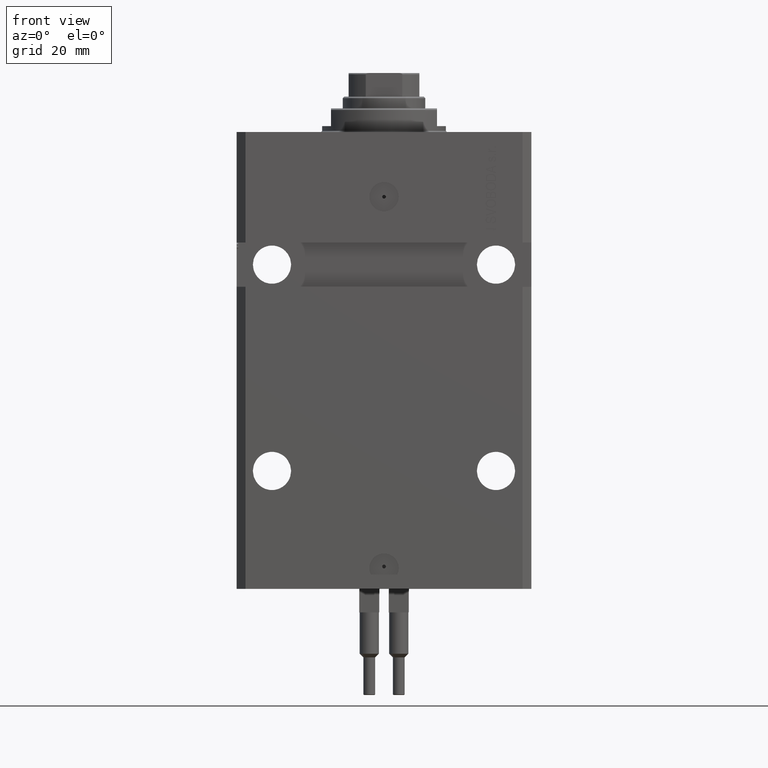
[diagram: clean part render]
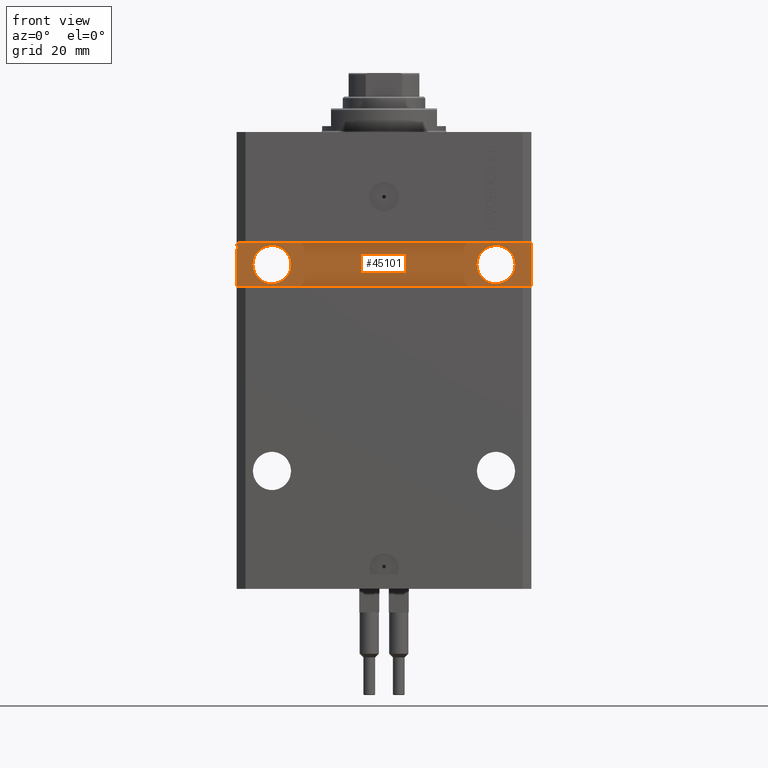
[diagram: same view with one face highlighted and labeled with its STEP entity id]
A machine part, front view. The second image highlights one B-rep face of the part: STEP entity #45101.
In plain terms, the highlighted planar face has unit normal (0, -1, 0).
Its self-contained STEP definition (entity closure, byte-faithful):
#3 = LINE ( 'NONE', #45347, #13160 ) ;
#674 = VERTEX_POINT ( 'NONE', #9948 ) ;
#1188 = VERTEX_POINT ( 'NONE', #18236 ) ;
#2284 = DIRECTION ( 'NONE',  ( 0.000000000000000000, 0.000000000000000000, -1.000000000000000000 ) ) ;
#2603 = CARTESIAN_POINT ( 'NONE',  ( -49.50000000000001421, -32.50000000000001421, -38.87066340383893959 ) ) ;
#2844 = DIRECTION ( 'NONE',  ( -1.000000000000000000, -0.000000000000000000, -0.000000000000000000 ) ) ;
#3007 = LINE ( 'NONE', #10695, #33400 ) ;
#3104 = EDGE_CURVE ( 'NONE', #35560, #1188, #3007, .T. ) ;
#3439 = EDGE_CURVE ( 'NONE', #29889, #26270, #47565, .T. ) ;
#4213 = CARTESIAN_POINT ( 'NONE',  ( -50.00000000000002842, -32.50000000000000711, -52.50000000000000000 ) ) ;
#4344 = ORIENTED_EDGE ( 'NONE', *, *, #31296, .T. ) ;
#4357 = ORIENTED_EDGE ( 'NONE', *, *, #29746, .F. ) ;
#5022 = ORIENTED_EDGE ( 'NONE', *, *, #6574, .F. ) ;
#6163 = VECTOR ( 'NONE', #47990, 1000.000000000000000 ) ;
#6218 = ORIENTED_EDGE ( 'NONE', *, *, #36492, .F. ) ;
#6323 = ORIENTED_EDGE ( 'NONE', *, *, #31222, .F. ) ;
#6550 = LINE ( 'NONE', #17206, #34693 ) ;
#6574 = EDGE_CURVE ( 'NONE', #14840, #35560, #47082, .T. ) ;
#7052 = ORIENTED_EDGE ( 'NONE', *, *, #3104, .F. ) ;
#7206 = DIRECTION ( 'NONE',  ( 1.101411730780568590E-16, -1.000000000000000000, 0.000000000000000000 ) ) ;
#8101 = CARTESIAN_POINT ( 'NONE',  ( 49.99999999999999289, -32.49999999999999289, -37.49999999999999289 ) ) ;
#8317 = CARTESIAN_POINT ( 'NONE',  ( -50.00000000000002842, -32.50000000000000711, -38.87066340383893959 ) ) ;
#8783 = FACE_BOUND ( 'NONE', #10429, .T. ) ;
#9240 = VERTEX_POINT ( 'NONE', #38800 ) ;
#9948 = CARTESIAN_POINT ( 'NONE',  ( -49.50000000000000711, -32.50000000000000711, -37.62144886363635976 ) ) ;
#10403 = ORIENTED_EDGE ( 'NONE', *, *, #12218, .T. ) ;
#10429 = EDGE_LOOP ( 'NONE', ( #6323, #31263 ) ) ;
#10695 = CARTESIAN_POINT ( 'NONE',  ( -49.50000000000016342, -32.50000000000000711, -39.86910993535713743 ) ) ;
#10739 = DIRECTION ( 'NONE',  ( 1.000000000000000000, 0.000000000000000000, 0.000000000000000000 ) ) ;
#11018 = ORIENTED_EDGE ( 'NONE', *, *, #27185, .F. ) ;
#11169 = CARTESIAN_POINT ( 'NONE',  ( -37.99999999999998579, -32.50000000000000711, -45.00000000000000711 ) ) ;
#11182 = DIRECTION ( 'NONE',  ( 3.791485858024926499E-13, 5.261743621399924533E-29, 1.000000000000000000 ) ) ;
#11225 = CARTESIAN_POINT ( 'NONE',  ( -31.49999999999998579, -32.50000000000000711, -45.00000000000000711 ) ) ;
#11402 = DIRECTION ( 'NONE',  ( -1.000000000000000000, -1.387778780781445182E-16, -1.387778780781445182E-16 ) ) ;
#11642 = CIRCLE ( 'NONE', #29843, 6.499999999999999112 ) ;
#11648 = LINE ( 'NONE', #4213, #26661 ) ;
#11817 = CARTESIAN_POINT ( 'NONE',  ( -50.00000000000002842, -32.50000000000000711, -37.50000000000000711 ) ) ;
#12216 = DIRECTION ( 'NONE',  ( 1.000000000000000000, 0.000000000000000000, 0.000000000000000000 ) ) ;
#12218 = EDGE_CURVE ( 'NONE', #30022, #29518, #44547, .T. ) ;
#13160 = VECTOR ( 'NONE', #11402, 1000.000000000000000 ) ;
#13814 = EDGE_CURVE ( 'NONE', #29518, #9240, #3, .T. ) ;
#14701 = CARTESIAN_POINT ( 'NONE',  ( 38.00000000000001421, -32.50000000000000000, -45.00000000000000000 ) ) ;
#14840 = VERTEX_POINT ( 'NONE', #20233 ) ;
#15297 = VECTOR ( 'NONE', #36654, 1000.000000000000000 ) ;
#15748 = VERTEX_POINT ( 'NONE', #23016 ) ;
#15831 = EDGE_LOOP ( 'NONE', ( #29501, #4357, #7052, #5022, #35999, #4344, #10403, #25346, #17666, #6218, #42689, #27901 ) ) ;
#16427 = EDGE_CURVE ( 'NONE', #31647, #42601, #35400, .T. ) ;
#16463 = CARTESIAN_POINT ( 'NONE',  ( -49.49999999999999289, -32.50000000000000711, -39.43474004052496440 ) ) ;
#16678 = AXIS2_PLACEMENT_3D ( 'NONE', #14701, #26338, #10739 ) ;
#17206 = CARTESIAN_POINT ( 'NONE',  ( -50.00000000000002842, -32.50000000000000711, -37.50000000000000711 ) ) ;
#17666 = ORIENTED_EDGE ( 'NONE', *, *, #21591, .T. ) ;
#18236 = CARTESIAN_POINT ( 'NONE',  ( -49.49999999999977973, -32.50000000000000711, -38.87066337907741342 ) ) ;
#18524 = CARTESIAN_POINT ( 'NONE',  ( 49.99999999999999289, -32.49999999999999289, -52.49999999999998579 ) ) ;
#19340 = CARTESIAN_POINT ( 'NONE',  ( -50.00000000000002842, -32.50000000000000711, -37.50000000000000711 ) ) ;
#19414 = AXIS2_PLACEMENT_3D ( 'NONE', #22485, #45514, #30151 ) ;
#19979 = DIRECTION ( 'NONE',  ( 0.000000000000000000, 0.000000000000000000, -1.000000000000000000 ) ) ;
#20174 = FACE_BOUND ( 'NONE', #37658, .T. ) ;
#20233 = CARTESIAN_POINT ( 'NONE',  ( -50.00000000000002842, -32.50000000000000711, -39.43474002179300442 ) ) ;
#21591 = EDGE_CURVE ( 'NONE', #9240, #15748, #6550, .T. ) ;
#21910 = DIRECTION ( 'NONE',  ( 0.000000000000000000, 0.000000000000000000, -1.000000000000000000 ) ) ;
#21950 = AXIS2_PLACEMENT_3D ( 'NONE', #31759, #42445, #12216 ) ;
#22021 = VECTOR ( 'NONE', #2284, 1000.000000000000000 ) ;
#22485 = CARTESIAN_POINT ( 'NONE',  ( 38.00000000000001421, -32.50000000000000000, -45.00000000000000000 ) ) ;
#23016 = CARTESIAN_POINT ( 'NONE',  ( -50.00000000000002842, -32.50000000000000711, -37.62144886363636687 ) ) ;
#23840 = CARTESIAN_POINT ( 'NONE',  ( -50.00000000000002842, -32.50000000000000711, -52.50000000000000000 ) ) ;
#25109 = CARTESIAN_POINT ( 'NONE',  ( -49.50000000000000711, -32.50000000000000711, -37.99999999999999289 ) ) ;
#25346 = ORIENTED_EDGE ( 'NONE', *, *, #13814, .T. ) ;
#26191 = CARTESIAN_POINT ( 'NONE',  ( 31.50000000000001421, -32.50000000000000000, -45.00000000000000000 ) ) ;
#26270 = VERTEX_POINT ( 'NONE', #39598 ) ;
#26338 = DIRECTION ( 'NONE',  ( 8.806446732139696505E-17, -1.000000000000000000, 6.162975822039154730E-33 ) ) ;
#26596 = VECTOR ( 'NONE', #2844, 1000.000000000000000 ) ;
#26661 = VECTOR ( 'NONE', #34678, 1000.000000000000000 ) ;
#27185 = EDGE_CURVE ( 'NONE', #30092, #29483, #36827, .T. ) ;
#27471 = CARTESIAN_POINT ( 'NONE',  ( 49.99999999999999289, -32.49999999999999289, -52.49999999999998579 ) ) ;
#27505 = VECTOR ( 'NONE', #38896, 1000.000000000000000 ) ;
#27901 = ORIENTED_EDGE ( 'NONE', *, *, #3439, .T. ) ;
#28092 = FACE_OUTER_BOUND ( 'NONE', #15831, .T. ) ;
#29393 = LINE ( 'NONE', #36840, #6163 ) ;
#29483 = VERTEX_POINT ( 'NONE', #26191 ) ;
#29501 = ORIENTED_EDGE ( 'NONE', *, *, #30301, .T. ) ;
#29518 = VERTEX_POINT ( 'NONE', #8101 ) ;
#29746 = EDGE_CURVE ( 'NONE', #1188, #33628, #45204, .T. ) ;
#29808 = VECTOR ( 'NONE', #19979, 1000.000000000000000 ) ;
#29843 = AXIS2_PLACEMENT_3D ( 'NONE', #11169, #7206, #40176 ) ;
#29889 = VERTEX_POINT ( 'NONE', #25109 ) ;
#30022 = VERTEX_POINT ( 'NONE', #27471 ) ;
#30092 = VERTEX_POINT ( 'NONE', #39610 ) ;
#30151 = DIRECTION ( 'NONE',  ( 1.000000000000000000, 0.000000000000000000, 0.000000000000000000 ) ) ;
#30301 = EDGE_CURVE ( 'NONE', #26270, #33628, #45765, .T. ) ;
#30893 = CIRCLE ( 'NONE', #16678, 6.499999999999999112 ) ;
#31222 = EDGE_CURVE ( 'NONE', #42601, #31647, #11642, .T. ) ;
#31263 = ORIENTED_EDGE ( 'NONE', *, *, #16427, .F. ) ;
#31296 = EDGE_CURVE ( 'NONE', #34405, #30022, #11648, .T. ) ;
#31554 = DIRECTION ( 'NONE',  ( 1.000000000000000000, 1.387778780781445182E-16, 0.000000000000000000 ) ) ;
#31647 = VERTEX_POINT ( 'NONE', #43699 ) ;
#31759 = CARTESIAN_POINT ( 'NONE',  ( -37.99999999999998579, -32.50000000000000711, -45.00000000000000711 ) ) ;
#32199 = DIRECTION ( 'NONE',  ( 1.000000000000000000, 0.000000000000000000, 0.000000000000000000 ) ) ;
#32242 = EDGE_CURVE ( 'NONE', #14840, #34405, #46334, .T. ) ;
#32759 = CARTESIAN_POINT ( 'NONE',  ( -49.50000000000000711, -32.49999999999999289, -37.62144886363635976 ) ) ;
#33400 = VECTOR ( 'NONE', #11182, 1000.000000000000000 ) ;
#33628 = VERTEX_POINT ( 'NONE', #8317 ) ;
#33699 = ORIENTED_EDGE ( 'NONE', *, *, #42602, .F. ) ;
#34077 = EDGE_CURVE ( 'NONE', #674, #29889, #39960, .T. ) ;
#34405 = VERTEX_POINT ( 'NONE', #23840 ) ;
#34678 = DIRECTION ( 'NONE',  ( 1.000000000000000000, 1.387778780781445182E-16, 1.387778780781445182E-16 ) ) ;
#34693 = VECTOR ( 'NONE', #21910, 1000.000000000000000 ) ;
#35400 = CIRCLE ( 'NONE', #21950, 6.499999999999999112 ) ;
#35560 = VERTEX_POINT ( 'NONE', #16463 ) ;
#35999 = ORIENTED_EDGE ( 'NONE', *, *, #32242, .T. ) ;
#36492 = EDGE_CURVE ( 'NONE', #674, #15748, #29393, .T. ) ;
#36654 = DIRECTION ( 'NONE',  ( -1.000000000000000000, -0.000000000000000000, -0.000000000000000000 ) ) ;
#36827 = CIRCLE ( 'NONE', #19414, 6.499999999999999112 ) ;
#36840 = CARTESIAN_POINT ( 'NONE',  ( -49.50000000000000711, -32.49999999999999289, -37.62144886363635976 ) ) ;
#37658 = EDGE_LOOP ( 'NONE', ( #11018, #33699 ) ) ;
#38800 = CARTESIAN_POINT ( 'NONE',  ( -50.00000000000002842, -32.50000000000000711, -37.50000000000000711 ) ) ;
#38896 = DIRECTION ( 'NONE',  ( 0.000000000000000000, 0.000000000000000000, -1.000000000000000000 ) ) ;
#39598 = CARTESIAN_POINT ( 'NONE',  ( -50.00000000000002842, -32.50000000000000711, -37.99999999999999289 ) ) ;
#39610 = CARTESIAN_POINT ( 'NONE',  ( 44.50000000000001421, -32.50000000000000000, -45.00000000000000000 ) ) ;
#39636 = CARTESIAN_POINT ( 'NONE',  ( -49.50000000000000711, -32.49999999999999289, -37.99999999999999289 ) ) ;
#39708 = AXIS2_PLACEMENT_3D ( 'NONE', #46205, #43215, #31554 ) ;
#39960 = LINE ( 'NONE', #32759, #22021 ) ;
#40176 = DIRECTION ( 'NONE',  ( 1.000000000000000000, 0.000000000000000000, 0.000000000000000000 ) ) ;
#40843 = DIRECTION ( 'NONE',  ( 0.000000000000000000, 0.000000000000000000, 1.000000000000000000 ) ) ;
#42378 = VECTOR ( 'NONE', #40843, 1000.000000000000000 ) ;
#42445 = DIRECTION ( 'NONE',  ( 1.101411730780568590E-16, -1.000000000000000000, 0.000000000000000000 ) ) ;
#42601 = VERTEX_POINT ( 'NONE', #11225 ) ;
#42602 = EDGE_CURVE ( 'NONE', #29483, #30092, #30893, .T. ) ;
#42689 = ORIENTED_EDGE ( 'NONE', *, *, #34077, .T. ) ;
#42972 = PLANE ( 'NONE',  #39708 ) ;
#43215 = DIRECTION ( 'NONE',  ( 1.387778780781445182E-16, -1.000000000000000000, 0.000000000000000000 ) ) ;
#43699 = CARTESIAN_POINT ( 'NONE',  ( -44.49999999999998579, -32.50000000000000711, -45.00000000000000711 ) ) ;
#43847 = CARTESIAN_POINT ( 'NONE',  ( -49.50000000000001421, -32.50000000000000711, -39.43474002179300442 ) ) ;
#44547 = LINE ( 'NONE', #18524, #42378 ) ;
#45101 = ADVANCED_FACE ( 'NONE', ( #20174, #8783, #28092 ), #42972, .T. ) ;
#45204 = LINE ( 'NONE', #2603, #26596 ) ;
#45347 = CARTESIAN_POINT ( 'NONE',  ( 49.99999999999999289, -32.49999999999999289, -37.49999999999999289 ) ) ;
#45361 = VECTOR ( 'NONE', #32199, 1000.000000000000000 ) ;
#45514 = DIRECTION ( 'NONE',  ( 8.806446732139696505E-17, -1.000000000000000000, 6.162975822039154730E-33 ) ) ;
#45765 = LINE ( 'NONE', #11817, #29808 ) ;
#46205 = CARTESIAN_POINT ( 'NONE',  ( 4.616128571667024604E-15, -32.50000000000000000, 0.000000000000000000 ) ) ;
#46334 = LINE ( 'NONE', #19340, #27505 ) ;
#47082 = LINE ( 'NONE', #43847, #45361 ) ;
#47565 = LINE ( 'NONE', #39636, #15297 ) ;
#47990 = DIRECTION ( 'NONE',  ( -1.000000000000000000, -0.000000000000000000, -0.000000000000000000 ) ) ;